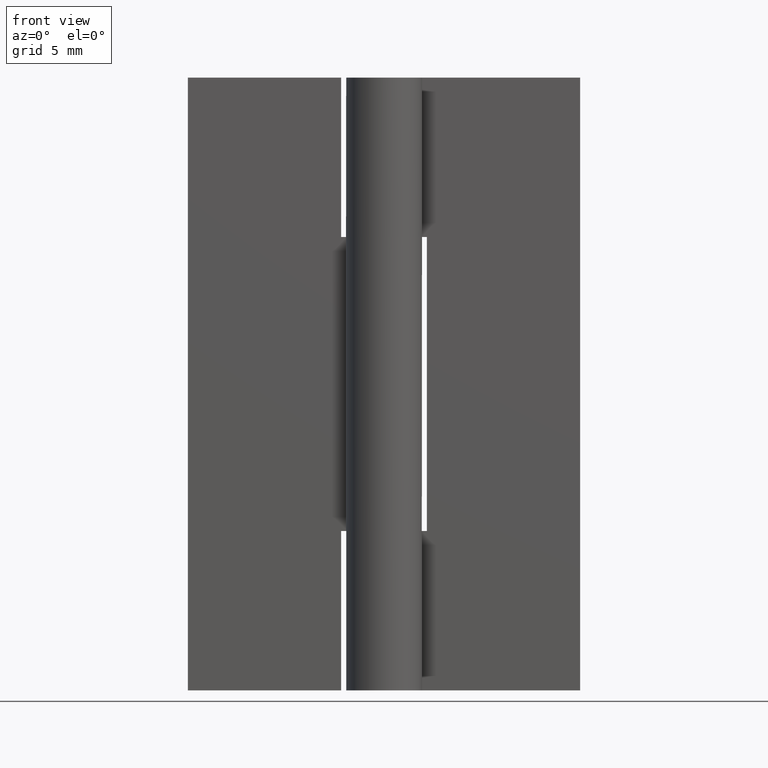
[diagram: clean part render]
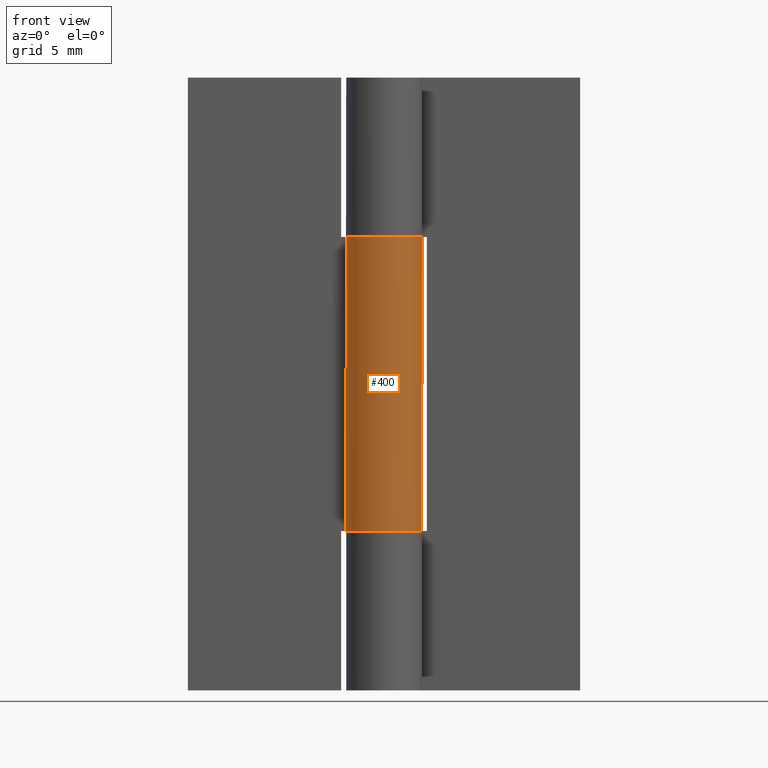
[diagram: same view with one face highlighted and labeled with its STEP entity id]
A machine part, front view. The second image highlights one B-rep face of the part: STEP entity #400.
In plain terms, the highlighted face is a freeform B-spline surface patch.
Its self-contained STEP definition (entity closure, byte-faithful):
#113=CARTESIAN_POINT('',(-2.739981751764050,1.450000000000000,37.0));
#114=VERTEX_POINT('',#113);
#120=CARTESIAN_POINT('',(0.0,3.099998000000000,37.0));
#121=VERTEX_POINT('',#120);
#122=CARTESIAN_POINT('',(0.0,3.099998000000000,37.0));
#123=CARTESIAN_POINT('',(2.356097610603766,3.099996737895512,37.0));
#124=CARTESIAN_POINT('',(2.986848545660751,0.829898189834370,37.0));
#125=CARTESIAN_POINT('',(3.617599480717734,-1.440200358226772,37.0));
#126=CARTESIAN_POINT('',(1.599218559171948,-2.655655344977900,37.0));
#127=CARTESIAN_POINT('',(-0.419162362373838,-3.871110331729029,37.0));
#128=CARTESIAN_POINT('',(-2.130594885355308,-2.251790737784724,37.0));
#129=CARTESIAN_POINT('',(-3.842027408336780,-0.632471143840418,37.0));
#130=CARTESIAN_POINT('',(-2.739981751764050,1.450000000000000,37.0));
#138=(BOUNDED_CURVE()B_SPLINE_CURVE(2,(#122,#123,#124,#125,#126,#127,#128,#129,#130),.UNSPECIFIED.,.F.,.U.)B_SPLINE_CURVE_WITH_KNOTS((3,2,2,2,3),(0.0,0.250000000000000,0.500000000000000,0.750000000000000,1.0),.UNSPECIFIED.)CURVE()GEOMETRIC_REPRESENTATION_ITEM()RATIONAL_B_SPLINE_CURVE((1.0,0.796150117301085,1.0,0.796150117301085,1.0,0.796150117301085,1.0,0.796150117301085,1.0))REPRESENTATION_ITEM(''));
#139=EDGE_CURVE('',#121,#114,#138,.T.);
#141=CARTESIAN_POINT('',(-0.003521362805224,3.099998000000000,37.0));
#142=VERTEX_POINT('',#141);
#143=CARTESIAN_POINT('',(0.0,3.099998000000000,37.0));
#144=CARTESIAN_POINT('',(-0.003521362805224,3.099998000000000,37.0));
#145=QUASI_UNIFORM_CURVE('',1,(#143,#144),.UNSPECIFIED.,.F.,.U.);
#146=EDGE_CURVE('',#121,#142,#145,.T.);
#206=CARTESIAN_POINT('',(-0.003521362805224,3.099998000000000,13.0));
#207=VERTEX_POINT('',#206);
#213=CARTESIAN_POINT('',(0.0,3.099998000000000,13.0));
#214=VERTEX_POINT('',#213);
#215=CARTESIAN_POINT('',(-0.003521362805224,3.099998000000000,13.0));
#216=CARTESIAN_POINT('',(0.0,3.099998000000000,13.0));
#217=QUASI_UNIFORM_CURVE('',1,(#215,#216),.UNSPECIFIED.,.F.,.U.);
#218=EDGE_CURVE('',#207,#214,#217,.T.);
#220=CARTESIAN_POINT('',(-2.739981751764050,1.450000000000000,13.0));
#221=VERTEX_POINT('',#220);
#222=CARTESIAN_POINT('',(-2.739981751764050,1.450000000000000,13.0));
#223=CARTESIAN_POINT('',(-3.842027408336779,-0.632471143840417,13.0));
#224=CARTESIAN_POINT('',(-2.130594885355309,-2.251790737784723,13.0));
#225=CARTESIAN_POINT('',(-0.419162362373838,-3.871110331729029,13.0));
#226=CARTESIAN_POINT('',(1.599218559171949,-2.655655344977900,13.0));
#227=CARTESIAN_POINT('',(3.617599480717734,-1.440200358226770,13.0));
#228=CARTESIAN_POINT('',(2.986848545660751,0.829898189834370,13.0));
#229=CARTESIAN_POINT('',(2.356097610603767,3.099996737895512,13.0));
#230=CARTESIAN_POINT('',(0.0,3.099998000000000,13.0));
#238=(BOUNDED_CURVE()B_SPLINE_CURVE(2,(#222,#223,#224,#225,#226,#227,#228,#229,#230),.UNSPECIFIED.,.F.,.U.)B_SPLINE_CURVE_WITH_KNOTS((3,2,2,2,3),(0.0,0.250000000000000,0.500000000000000,0.750000000000000,1.0),.UNSPECIFIED.)CURVE()GEOMETRIC_REPRESENTATION_ITEM()RATIONAL_B_SPLINE_CURVE((1.0,0.796150117301085,1.0,0.796150117301085,1.0,0.796150117301085,1.0,0.796150117301085,1.0))REPRESENTATION_ITEM(''));
#239=EDGE_CURVE('',#221,#214,#238,.T.);
#352=CARTESIAN_POINT('',(-0.003521362805224,3.099998000000000,13.0));
#353=CARTESIAN_POINT('',(-0.003521362805224,3.099998000000000,37.0));
#354=QUASI_UNIFORM_CURVE('',1,(#352,#353),.UNSPECIFIED.,.F.,.U.);
#355=EDGE_CURVE('',#207,#142,#354,.T.);
#366=CARTESIAN_POINT('',(-0.087215809709333,3.098772886569253,12.400000000000000));
#367=CARTESIAN_POINT('',(-0.087215809709333,3.098772886569253,37.615000000000009));
#368=CARTESIAN_POINT('',(3.694254208917625,3.205203393624339,12.399999999999995));
#369=CARTESIAN_POINT('',(3.694254208917625,3.205203393624339,37.615000000000002));
#370=CARTESIAN_POINT('',(3.055487706738078,-0.523445196723091,12.400000000000000));
#371=CARTESIAN_POINT('',(3.055487706738078,-0.523445196723091,37.615000000000009));
#372=CARTESIAN_POINT('',(2.416721204558533,-4.252093787070521,12.399999999999995));
#373=CARTESIAN_POINT('',(2.416721204558533,-4.252093787070521,37.615000000000002));
#374=CARTESIAN_POINT('',(-1.113692359485487,-2.893041535896719,12.400000000000000));
#375=CARTESIAN_POINT('',(-1.113692359485487,-2.893041535896719,37.615000000000009));
#376=CARTESIAN_POINT('',(-4.644105923529505,-1.533989284722917,12.399999999999995));
#377=CARTESIAN_POINT('',(-4.644105923529505,-1.533989284722917,37.615000000000002));
#378=CARTESIAN_POINT('',(-2.617769613640667,1.660506624467241,12.400000000000000));
#379=CARTESIAN_POINT('',(-2.617769613640667,1.660506624467241,37.615000000000009));
#387=(BOUNDED_SURFACE()B_SPLINE_SURFACE(1,2,((#366,#368,#370,#372,#374,#376,#378),(#367,#369,#371,#373,#375,#377,#379)),.UNSPECIFIED.,.F.,.F.,.U.)B_SPLINE_SURFACE_WITH_KNOTS((2,2),(3,2,2,3),(0.0,25.215000000000011),(0.0,5.870281529289077,11.740563058578150,17.610844587867231),.UNSPECIFIED.)GEOMETRIC_REPRESENTATION_ITEM()RATIONAL_B_SPLINE_SURFACE(((1.0,0.633830967398710,1.0,0.633830967398710,1.0,0.633830967398710,1.0),(1.0,0.633830967398710,1.0,0.633830967398710,1.0,0.633830967398710,1.0)))REPRESENTATION_ITEM('')SURFACE());
#388=ORIENTED_EDGE('',*,*,#146,.F.);
#389=ORIENTED_EDGE('',*,*,#139,.T.);
#390=CARTESIAN_POINT('',(-2.739981751764050,1.450000000000000,13.0));
#391=CARTESIAN_POINT('',(-2.739981751764050,1.450000000000000,37.0));
#392=QUASI_UNIFORM_CURVE('',1,(#390,#391),.UNSPECIFIED.,.F.,.U.);
#393=EDGE_CURVE('',#221,#114,#392,.T.);
#394=ORIENTED_EDGE('',*,*,#393,.F.);
#395=ORIENTED_EDGE('',*,*,#239,.T.);
#396=ORIENTED_EDGE('',*,*,#218,.F.);
#397=ORIENTED_EDGE('',*,*,#355,.T.);
#398=EDGE_LOOP('',(#388,#389,#394,#395,#396,#397));
#399=FACE_OUTER_BOUND('',#398,.T.);
#400=ADVANCED_FACE('',(#399),#387,.T.);